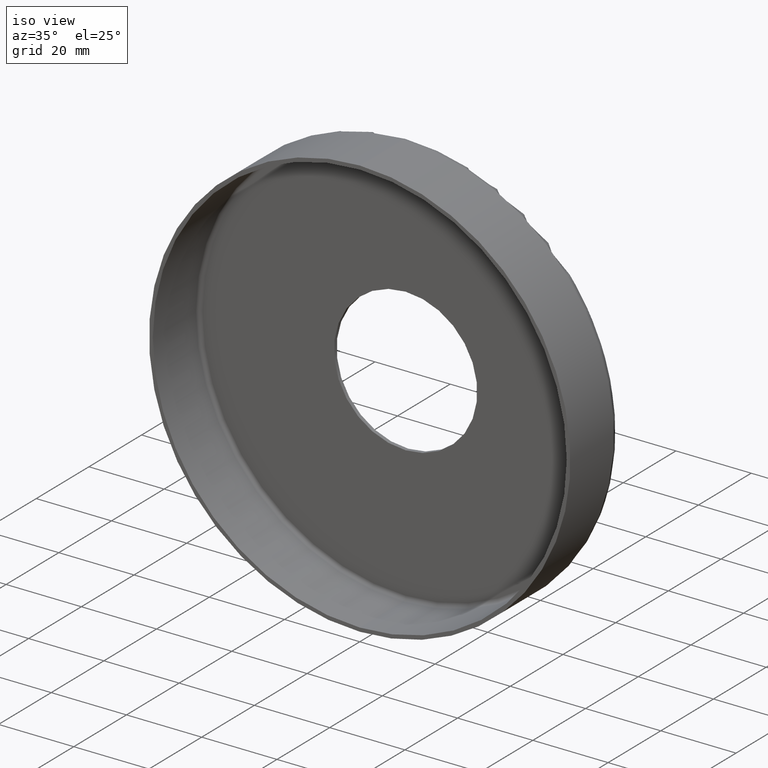
[diagram: clean part render]
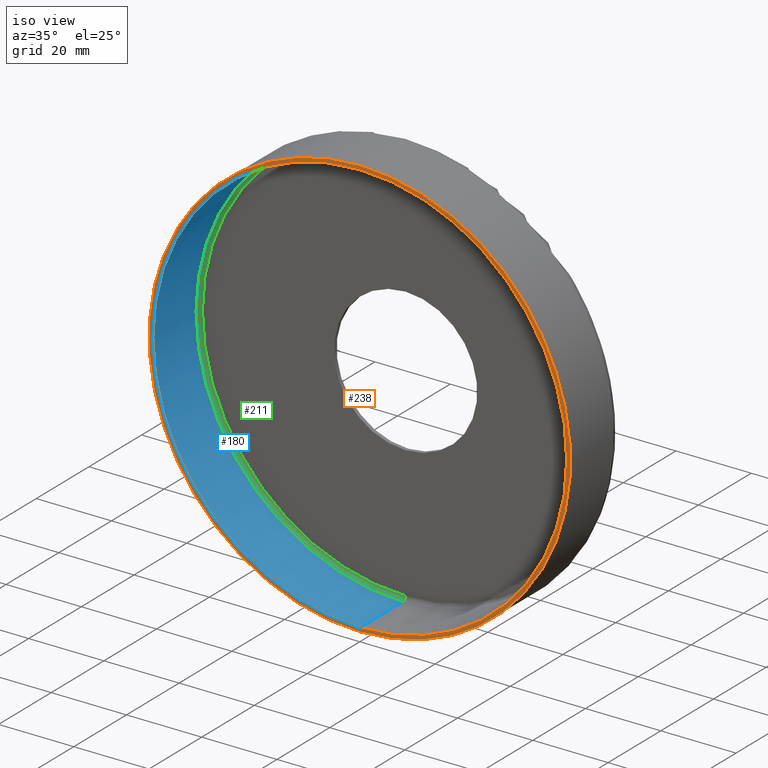
[diagram: same view with three faces highlighted in distinct colors, each labeled with its STEP entity id]
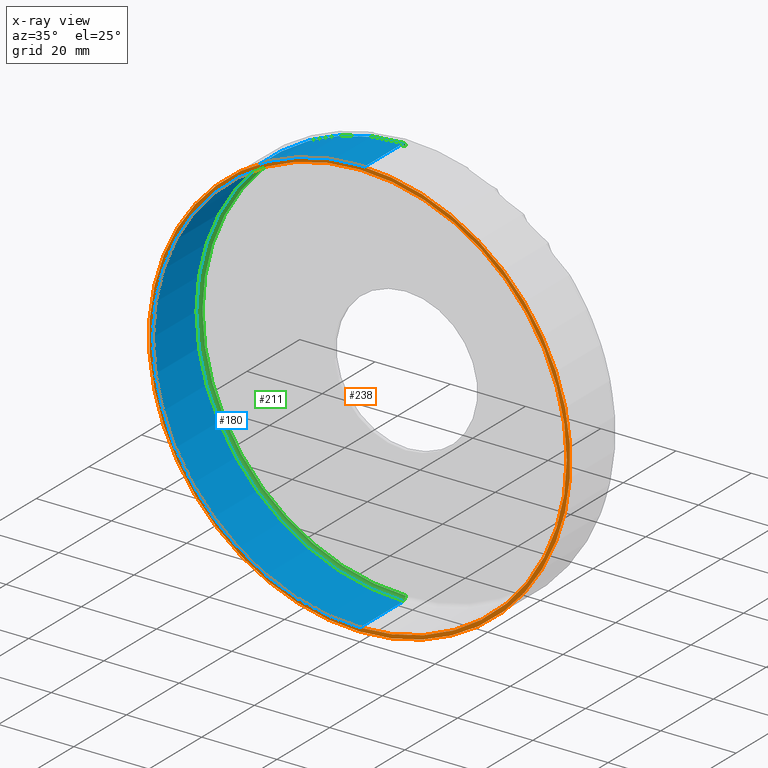
[diagram: x-ray of the same camera — body ghosted, the three highlighted faces saturated]
A machine part, iso view with three faces highlighted in distinct colors.
The next image is the same camera in x-ray (body ghosted, the three faces saturated) — at least one of them is partly hidden behind the body in this view.
Their STEP definitions:

[orange] entity #238 — the highlighted planar face has unit normal (0, 1, 0).
#1 = DIRECTION ( 'NONE',  ( 0.0000000000000000000, 0.0000000000000000000, 1.000000000000000000 ) ) ;
#2 = EDGE_CURVE ( 'NONE', #162, #101, #78, .T. ) ;
#13 = CIRCLE ( 'NONE', #47, 55.00000000000000700 ) ;
#15 = VERTEX_POINT ( 'NONE', #282 ) ;
#36 = CARTESIAN_POINT ( 'NONE',  ( 0.0000000000000000000, 0.0000000000000000000, 0.0000000000000000000 ) ) ;
#40 = DIRECTION ( 'NONE',  ( 0.0000000000000000000, 0.0000000000000000000, 1.000000000000000000 ) ) ;
#47 = AXIS2_PLACEMENT_3D ( 'NONE', #290, #159, #338 ) ;
#70 = PLANE ( 'NONE',  #156 ) ;
#74 = EDGE_LOOP ( 'NONE', ( #367, #253 ) ) ;
#77 = AXIS2_PLACEMENT_3D ( 'NONE', #372, #376, #183 ) ;
#78 = CIRCLE ( 'NONE', #77, 55.00000000000000700 ) ;
#101 = VERTEX_POINT ( 'NONE', #118 ) ;
#118 = CARTESIAN_POINT ( 'NONE',  ( 0.0000000000000000000, 0.0000000000000000000, -55.00000000000000700 ) ) ;
#131 = EDGE_LOOP ( 'NONE', ( #208, #295 ) ) ;
#137 = CARTESIAN_POINT ( 'NONE',  ( 0.0000000000000000000, 0.0000000000000000000, 0.0000000000000000000 ) ) ;
#146 = EDGE_CURVE ( 'NONE', #15, #248, #189, .T. ) ;
#152 = CARTESIAN_POINT ( 'NONE',  ( 6.858022075225179300E-015, 0.0000000000000000000, 56.00000000000000700 ) ) ;
#156 = AXIS2_PLACEMENT_3D ( 'NONE', #137, #160, #360 ) ;
#159 = DIRECTION ( 'NONE',  ( 0.0000000000000000000, 1.000000000000000000, 0.0000000000000000000 ) ) ;
#160 = DIRECTION ( 'NONE',  ( 0.0000000000000000000, 1.000000000000000000, 0.0000000000000000000 ) ) ;
#162 = VERTEX_POINT ( 'NONE', #348 ) ;
#183 = DIRECTION ( 'NONE',  ( 0.0000000000000000000, 0.0000000000000000000, 1.000000000000000000 ) ) ;
#187 = DIRECTION ( 'NONE',  ( 0.0000000000000000000, 1.000000000000000000, 0.0000000000000000000 ) ) ;
#189 = CIRCLE ( 'NONE', #388, 56.00000000000000700 ) ;
#208 = ORIENTED_EDGE ( 'NONE', *, *, #325, .T. ) ;
#222 = AXIS2_PLACEMENT_3D ( 'NONE', #393, #350, #1 ) ;
#238 = ADVANCED_FACE ( 'NONE', ( #339, #349 ), #70, .F. ) ;
#248 = VERTEX_POINT ( 'NONE', #152 ) ;
#253 = ORIENTED_EDGE ( 'NONE', *, *, #294, .F. ) ;
#282 = CARTESIAN_POINT ( 'NONE',  ( 0.0000000000000000000, 0.0000000000000000000, -56.00000000000000700 ) ) ;
#290 = CARTESIAN_POINT ( 'NONE',  ( 0.0000000000000000000, 0.0000000000000000000, 0.0000000000000000000 ) ) ;
#294 = EDGE_CURVE ( 'NONE', #248, #15, #386, .T. ) ;
#295 = ORIENTED_EDGE ( 'NONE', *, *, #2, .T. ) ;
#325 = EDGE_CURVE ( 'NONE', #101, #162, #13, .T. ) ;
#338 = DIRECTION ( 'NONE',  ( 0.0000000000000000000, 0.0000000000000000000, 1.000000000000000000 ) ) ;
#339 = FACE_BOUND ( 'NONE', #131, .T. ) ;
#348 = CARTESIAN_POINT ( 'NONE',  ( 6.735557395310444200E-015, 0.0000000000000000000, 55.00000000000000700 ) ) ;
#349 = FACE_OUTER_BOUND ( 'NONE', #74, .T. ) ;
#350 = DIRECTION ( 'NONE',  ( 0.0000000000000000000, 1.000000000000000000, 0.0000000000000000000 ) ) ;
#360 = DIRECTION ( 'NONE',  ( 0.0000000000000000000, -0.0000000000000000000, 1.000000000000000000 ) ) ;
#367 = ORIENTED_EDGE ( 'NONE', *, *, #146, .F. ) ;
#372 = CARTESIAN_POINT ( 'NONE',  ( 0.0000000000000000000, 0.0000000000000000000, 0.0000000000000000000 ) ) ;
#376 = DIRECTION ( 'NONE',  ( 0.0000000000000000000, 1.000000000000000000, 0.0000000000000000000 ) ) ;
#386 = CIRCLE ( 'NONE', #222, 56.00000000000000700 ) ;
#388 = AXIS2_PLACEMENT_3D ( 'NONE', #36, #187, #40 ) ;
#393 = CARTESIAN_POINT ( 'NONE',  ( 0.0000000000000000000, 0.0000000000000000000, 0.0000000000000000000 ) ) ;

[blue] entity #180 — the highlighted cylindrical surface (partial cylindrical patch) has radius 55 mm, axis along (-0, -1, -0).
#13 = CIRCLE ( 'NONE', #47, 55.00000000000000700 ) ;
#23 = AXIS2_PLACEMENT_3D ( 'NONE', #256, #184, #62 ) ;
#30 = FACE_OUTER_BOUND ( 'NONE', #175, .T. ) ;
#32 = CARTESIAN_POINT ( 'NONE',  ( 6.735557395310444200E-015, 18.39999999999999900, 55.00000000000000700 ) ) ;
#47 = AXIS2_PLACEMENT_3D ( 'NONE', #290, #159, #338 ) ;
#55 = VECTOR ( 'NONE', #217, 1000.000000000000000 ) ;
#62 = DIRECTION ( 'NONE',  ( 0.0000000000000000000, 0.0000000000000000000, -1.000000000000000000 ) ) ;
#72 = CIRCLE ( 'NONE', #210, 55.00000000000000700 ) ;
#96 = CARTESIAN_POINT ( 'NONE',  ( 0.0000000000000000000, 16.39999999999999900, -55.00000000000000700 ) ) ;
#100 = CYLINDRICAL_SURFACE ( 'NONE', #23, 55.00000000000000700 ) ;
#101 = VERTEX_POINT ( 'NONE', #118 ) ;
#108 = VERTEX_POINT ( 'NONE', #213 ) ;
#118 = CARTESIAN_POINT ( 'NONE',  ( 0.0000000000000000000, 0.0000000000000000000, -55.00000000000000700 ) ) ;
#119 = ORIENTED_EDGE ( 'NONE', *, *, #343, .T. ) ;
#130 = DIRECTION ( 'NONE',  ( -0.0000000000000000000, -1.000000000000000000, -0.0000000000000000000 ) ) ;
#142 = VERTEX_POINT ( 'NONE', #96 ) ;
#143 = EDGE_CURVE ( 'NONE', #108, #142, #72, .T. ) ;
#153 = DIRECTION ( 'NONE',  ( -0.0000000000000000000, -1.000000000000000000, -0.0000000000000000000 ) ) ;
#159 = DIRECTION ( 'NONE',  ( 0.0000000000000000000, 1.000000000000000000, 0.0000000000000000000 ) ) ;
#162 = VERTEX_POINT ( 'NONE', #348 ) ;
#172 = LINE ( 'NONE', #398, #219 ) ;
#175 = EDGE_LOOP ( 'NONE', ( #371, #119, #304, #214 ) ) ;
#176 = EDGE_CURVE ( 'NONE', #142, #101, #172, .T. ) ;
#180 = ADVANCED_FACE ( 'NONE', ( #30 ), #100, .F. ) ;
#184 = DIRECTION ( 'NONE',  ( -0.0000000000000000000, -1.000000000000000000, -0.0000000000000000000 ) ) ;
#210 = AXIS2_PLACEMENT_3D ( 'NONE', #284, #153, #292 ) ;
#213 = CARTESIAN_POINT ( 'NONE',  ( 6.735557395310444200E-015, 16.39999999999999900, 55.00000000000000700 ) ) ;
#214 = ORIENTED_EDGE ( 'NONE', *, *, #176, .F. ) ;
#217 = DIRECTION ( 'NONE',  ( -0.0000000000000000000, -1.000000000000000000, -0.0000000000000000000 ) ) ;
#219 = VECTOR ( 'NONE', #130, 1000.000000000000000 ) ;
#256 = CARTESIAN_POINT ( 'NONE',  ( 0.0000000000000000000, 18.39999999999999900, 0.0000000000000000000 ) ) ;
#284 = CARTESIAN_POINT ( 'NONE',  ( 0.0000000000000000000, 16.39999999999999900, 0.0000000000000000000 ) ) ;
#288 = LINE ( 'NONE', #32, #55 ) ;
#290 = CARTESIAN_POINT ( 'NONE',  ( 0.0000000000000000000, 0.0000000000000000000, 0.0000000000000000000 ) ) ;
#292 = DIRECTION ( 'NONE',  ( 0.0000000000000000000, 0.0000000000000000000, -1.000000000000000000 ) ) ;
#304 = ORIENTED_EDGE ( 'NONE', *, *, #325, .F. ) ;
#325 = EDGE_CURVE ( 'NONE', #101, #162, #13, .T. ) ;
#338 = DIRECTION ( 'NONE',  ( 0.0000000000000000000, 0.0000000000000000000, 1.000000000000000000 ) ) ;
#343 = EDGE_CURVE ( 'NONE', #108, #162, #288, .T. ) ;
#348 = CARTESIAN_POINT ( 'NONE',  ( 6.735557395310444200E-015, 0.0000000000000000000, 55.00000000000000700 ) ) ;
#371 = ORIENTED_EDGE ( 'NONE', *, *, #143, .F. ) ;
#398 = CARTESIAN_POINT ( 'NONE',  ( 0.0000000000000000000, 18.39999999999999900, -55.00000000000000700 ) ) ;

[green] entity #211 — the highlighted toroidal blend (fillet) surface has major radius 54 mm and minor (blend) radius 1 mm.
#4 = DIRECTION ( 'NONE',  ( -1.000000000000000000, 0.0000000000000000000, 0.0000000000000000000 ) ) ;
#16 = DIRECTION ( 'NONE',  ( 0.0000000000000000000, 1.000000000000000000, 0.0000000000000000000 ) ) ;
#19 = ORIENTED_EDGE ( 'NONE', *, *, #143, .T. ) ;
#31 = ORIENTED_EDGE ( 'NONE', *, *, #236, .T. ) ;
#33 = DIRECTION ( 'NONE',  ( 1.000000000000000000, -0.0000000000000000000, 1.224646799147353200E-016 ) ) ;
#38 = CIRCLE ( 'NONE', #291, 1.000000000000000900 ) ;
#45 = ORIENTED_EDGE ( 'NONE', *, *, #309, .T. ) ;
#46 = DIRECTION ( 'NONE',  ( 0.0000000000000000000, 0.0000000000000000000, 1.000000000000000000 ) ) ;
#69 = CARTESIAN_POINT ( 'NONE',  ( 6.674325055353075800E-015, 17.39999999999999900, -54.00000000000000700 ) ) ;
#71 = DIRECTION ( 'NONE',  ( 0.0000000000000000000, 1.000000000000000000, 0.0000000000000000000 ) ) ;
#72 = CIRCLE ( 'NONE', #210, 55.00000000000000700 ) ;
#81 = ORIENTED_EDGE ( 'NONE', *, *, #332, .F. ) ;
#96 = CARTESIAN_POINT ( 'NONE',  ( 0.0000000000000000000, 16.39999999999999900, -55.00000000000000700 ) ) ;
#106 = DIRECTION ( 'NONE',  ( 0.0000000000000000000, 0.0000000000000000000, 1.000000000000000000 ) ) ;
#108 = VERTEX_POINT ( 'NONE', #213 ) ;
#123 = AXIS2_PLACEMENT_3D ( 'NONE', #385, #16, #46 ) ;
#139 = FACE_OUTER_BOUND ( 'NONE', #306, .T. ) ;
#142 = VERTEX_POINT ( 'NONE', #96 ) ;
#143 = EDGE_CURVE ( 'NONE', #108, #142, #72, .T. ) ;
#148 = CARTESIAN_POINT ( 'NONE',  ( 0.0000000000000000000, 16.39999999999999900, 54.00000000000000700 ) ) ;
#153 = DIRECTION ( 'NONE',  ( -0.0000000000000000000, -1.000000000000000000, -0.0000000000000000000 ) ) ;
#181 = TOROIDAL_SURFACE ( 'NONE', #123, 54.00000000000000700, 1.000000000000000000 ) ;
#210 = AXIS2_PLACEMENT_3D ( 'NONE', #284, #153, #292 ) ;
#211 = ADVANCED_FACE ( 'NONE', ( #139 ), #181, .F. ) ;
#213 = CARTESIAN_POINT ( 'NONE',  ( 6.735557395310444200E-015, 16.39999999999999900, 55.00000000000000700 ) ) ;
#224 = VERTEX_POINT ( 'NONE', #296 ) ;
#232 = AXIS2_PLACEMENT_3D ( 'NONE', #148, #4, #316 ) ;
#236 = EDGE_CURVE ( 'NONE', #273, #224, #269, .T. ) ;
#262 = CARTESIAN_POINT ( 'NONE',  ( 0.0000000000000000000, 17.39999999999999900, 0.0000000000000000000 ) ) ;
#269 = CIRCLE ( 'NONE', #370, 54.00000000000000700 ) ;
#273 = VERTEX_POINT ( 'NONE', #69 ) ;
#284 = CARTESIAN_POINT ( 'NONE',  ( 0.0000000000000000000, 16.39999999999999900, 0.0000000000000000000 ) ) ;
#291 = AXIS2_PLACEMENT_3D ( 'NONE', #380, #33, #342 ) ;
#292 = DIRECTION ( 'NONE',  ( 0.0000000000000000000, 0.0000000000000000000, -1.000000000000000000 ) ) ;
#296 = CARTESIAN_POINT ( 'NONE',  ( 0.0000000000000000000, 17.39999999999999900, 54.00000000000000700 ) ) ;
#306 = EDGE_LOOP ( 'NONE', ( #19, #45, #31, #81 ) ) ;
#309 = EDGE_CURVE ( 'NONE', #142, #273, #38, .T. ) ;
#316 = DIRECTION ( 'NONE',  ( 0.0000000000000000000, 0.0000000000000000000, 1.000000000000000000 ) ) ;
#330 = CIRCLE ( 'NONE', #232, 1.000000000000000900 ) ;
#332 = EDGE_CURVE ( 'NONE', #108, #224, #330, .T. ) ;
#342 = DIRECTION ( 'NONE',  ( 1.224646799147349500E-016, 0.0000000000000000000, -1.000000000000000000 ) ) ;
#370 = AXIS2_PLACEMENT_3D ( 'NONE', #262, #71, #106 ) ;
#380 = CARTESIAN_POINT ( 'NONE',  ( 6.613092715395708300E-015, 16.39999999999999900, -54.00000000000000700 ) ) ;
#385 = CARTESIAN_POINT ( 'NONE',  ( 0.0000000000000000000, 16.39999999999999900, 0.0000000000000000000 ) ) ;